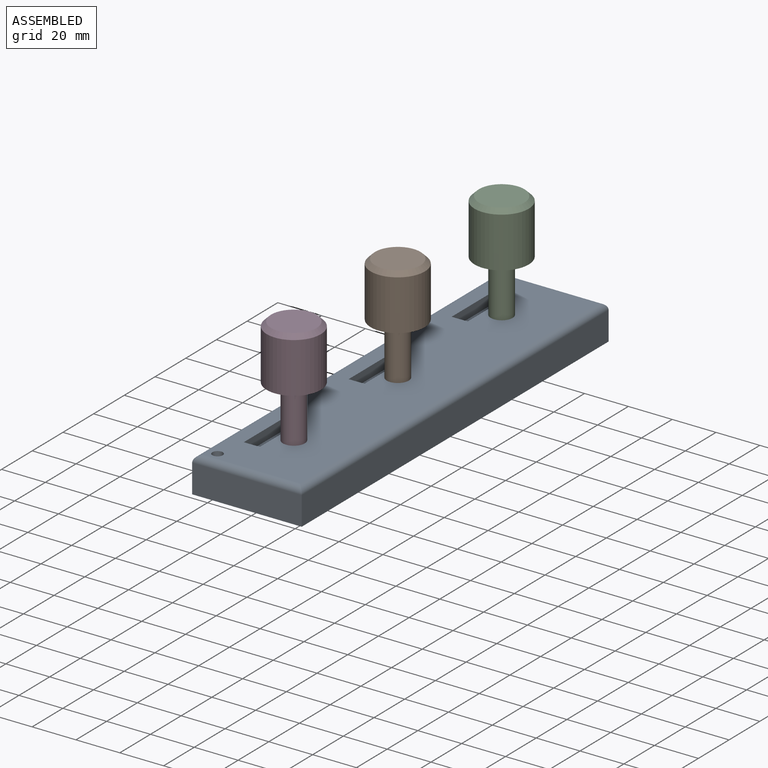
[diagram: assembled view]
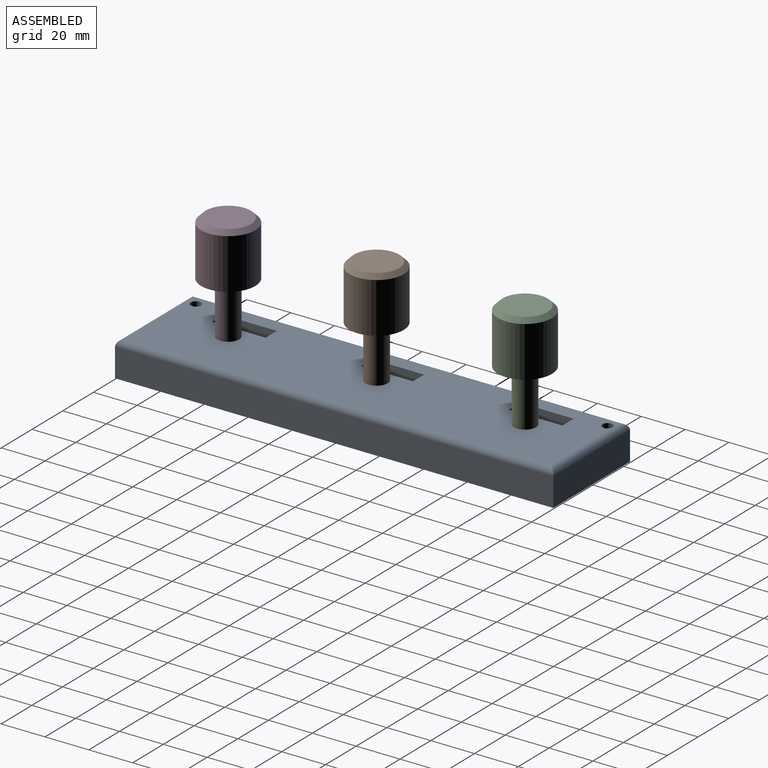
[diagram: assembled view, second angle]
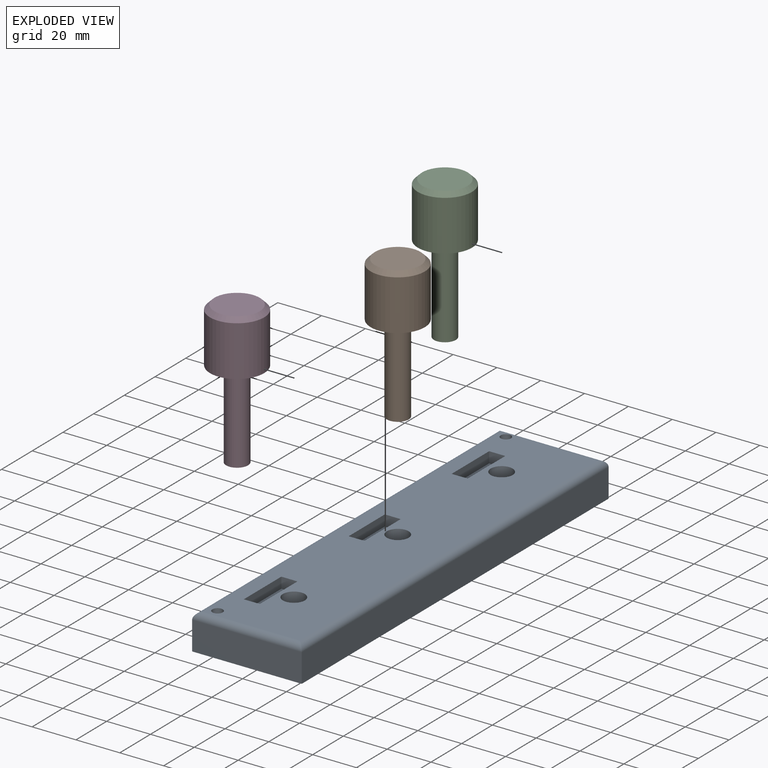
[diagram: exploded view]
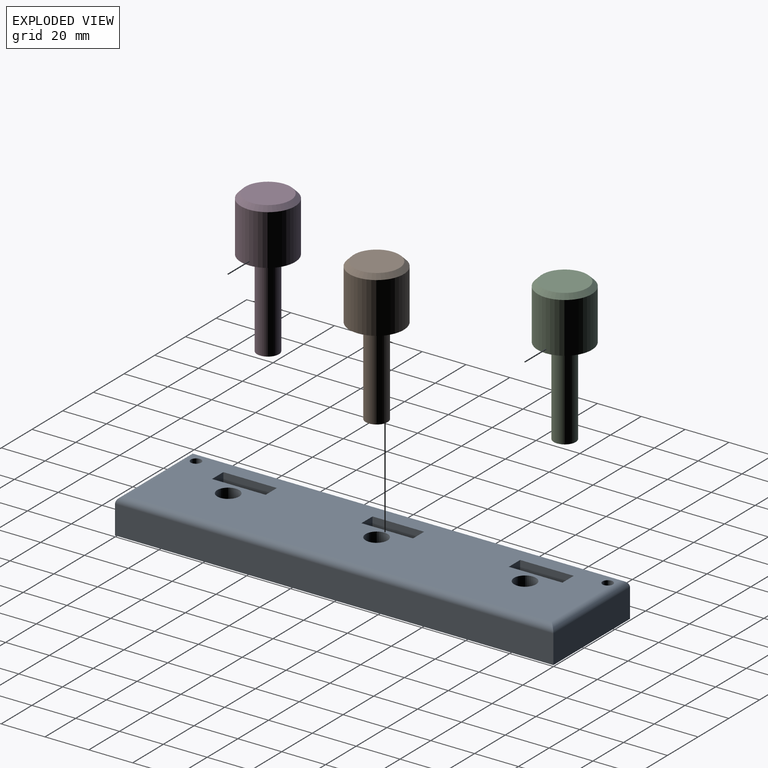
[diagram: exploded view, second angle]
ASSEMBLY  parts=4 mates=3
PART A: 30 faces, bbox 50x200x16 mm
  f0: plane 194x44mm, normal (0,0,1), area 7733.9mm2, adj f6,f7,f8,f9,f10,f11,f12,f13
  f1: plane 200x50mm, normal (0,0,-1), area 9729.2mm2, adj f2,f3,f4,f5,f10,f11,f12,f13
  f2: plane 50x13mm, normal (0,1,0), area 650mm2, adj f1,f3,f5,f6
  f3: plane 200x13mm, normal (-1,0,0), area 2600mm2, adj f1,f2,f4,f7
  f4: plane 50x13mm, normal (0,-1,0), area 650mm2, adj f1,f3,f5,f9
  f5: plane 200x13mm, normal (1,0,0), area 2600mm2, adj f1,f2,f4,f8
  f6: cylinder r=3mm len=50mm, axis (1,0,0), area 225.3mm2, adj f0,f2,f7,f8
  f7: cylinder r=3mm len=200mm, axis (0,1,0), area 932.2mm2, adj f0,f3,f6,f9
  f8: cylinder r=3mm len=200mm, axis (0,-1,0), area 932.2mm2, adj f0,f5,f6,f9
  f9: cylinder r=3mm len=50mm, axis (-1,0,0), area 225.3mm2, adj f0,f4,f7,f8
  f10: cylinder r=5mm len=16mm, axis (0,0,1), area 502.7mm2, adj f0,f1
  f11: cylinder r=5mm len=16mm, axis (0,0,1), area 502.7mm2, adj f0,f1
  f12: cylinder r=5mm len=16mm, axis (0,0,1), area 502.7mm2, adj f0,f1
  f13: cylinder r=2.37mm len=16mm, axis (0,0,1), area 237.8mm2, adj f0,f1
  f14: cylinder r=2.37mm len=16mm, axis (0,0,1), area 237.8mm2, adj f0,f1
  f15: plane 24.45x5mm, normal (-1,0,0), area 122.3mm2, adj f0,f16,f18,f19
  f16: plane 7.37x5mm, normal (0,-1,0), area 36.9mm2, adj f0,f15,f17,f19
  f17: plane 24.45x5mm, normal (1,0,0), area 122.3mm2, adj f0,f16,f18,f19
  f18: plane 7.37x5mm, normal (0,1,0), area 36.9mm2, adj f0,f15,f17,f19
  f19: plane 24.45x7.37mm, normal (0,0,1), area 180.2mm2, adj f15,f16,f17,f18
  f20: plane 23.56x5mm, normal (1,0,0), area 117.8mm2, adj f0,f21,f23,f24
  f21: plane 7.25x5mm, normal (0,1,0), area 36.3mm2, adj f0,f20,f22,f24
  f22: plane 23.56x5mm, normal (-1,0,0), area 117.8mm2, adj f0,f21,f23,f24
  f23: plane 7.25x5mm, normal (0,-1,0), area 36.3mm2, adj f0,f20,f22,f24
  f24: plane 23.56x7.25mm, normal (0,0,1), area 170.9mm2, adj f20,f21,f22,f23
  f25: plane 24.45x5mm, normal (1,0,0), area 122.3mm2, adj f0,f26,f28,f29
  f26: plane 7.37x5mm, normal (0,1,0), area 36.9mm2, adj f0,f25,f27,f29
  f27: plane 24.45x5mm, normal (-1,0,0), area 122.3mm2, adj f0,f26,f28,f29
  f28: plane 7.37x5mm, normal (0,-1,0), area 36.9mm2, adj f0,f25,f27,f29
  f29: plane 24.45x7.37mm, normal (0,0,1), area 180.2mm2, adj f25,f26,f27,f28
PART B: 6 faces, bbox 24.7x24.7x65 mm
  f0: cylinder r=5mm len=40mm, axis (0,0,-1), area 1256.6mm2, adj f1,f4
  f1: plane 10x10mm, normal (0,0,-1), area 78.5mm2, adj f0
  f2: cylinder r=12.37mm len=24.73mm, axis (0,0,-1), area 1787.1mm2, adj f4,f5
  f3: plane 20.73x20.73mm, normal (0,0,1), area 337.6mm2, adj f5
  f4: plane 24.73x24.73mm, normal (0,0,-1), area 401.9mm2, adj f0,f2
  f5: cone r=10.37mm half-angle=45deg, axis (0,0,-1), area 202mm2, adj f2,f3
PART C: same geometry as B
PART D: same geometry as B
PLACE A t=(3.51,-16.05,1.75)mm
PLACE B t=(-41.94,-16.05,1.75)mm
PLACE C t=(-41.94,51.67,1.75)mm
PLACE D t=(-41.94,-83.77,1.75)mm
MATE fastened C.f0 <-> A.f10  axis (0,0,-1) through (-41.94,51.67,1.75)mm
MATE fastened B.f0 <-> A.f11  axis (0,0,-1) through (-41.94,-16.05,1.75)mm
MATE fastened D.f0 <-> A.f12  axis (0,0,-1) through (-41.94,-83.77,1.75)mm
